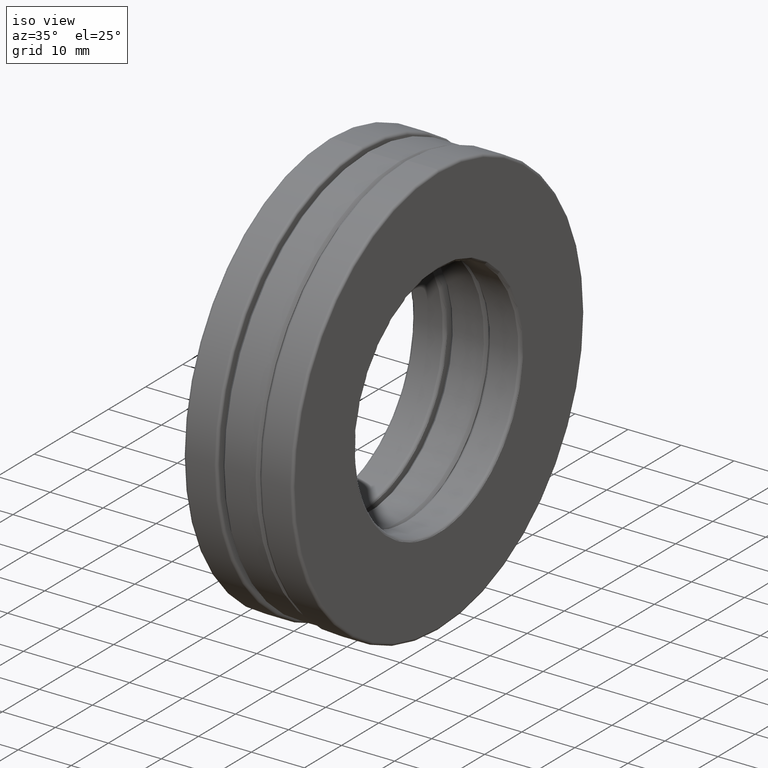
[diagram: clean part render]
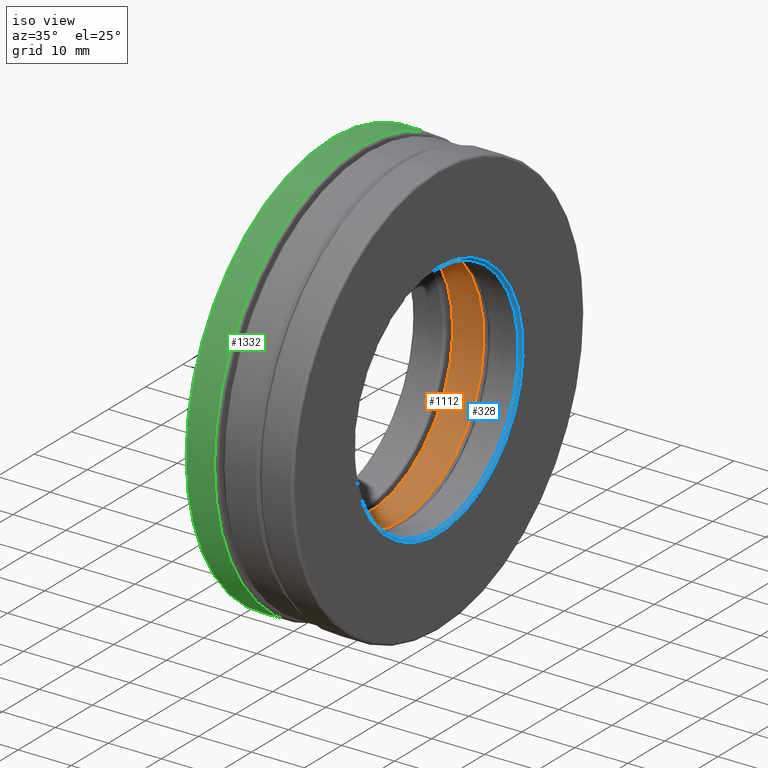
[diagram: same view with three faces highlighted in distinct colors, each labeled with its STEP entity id]
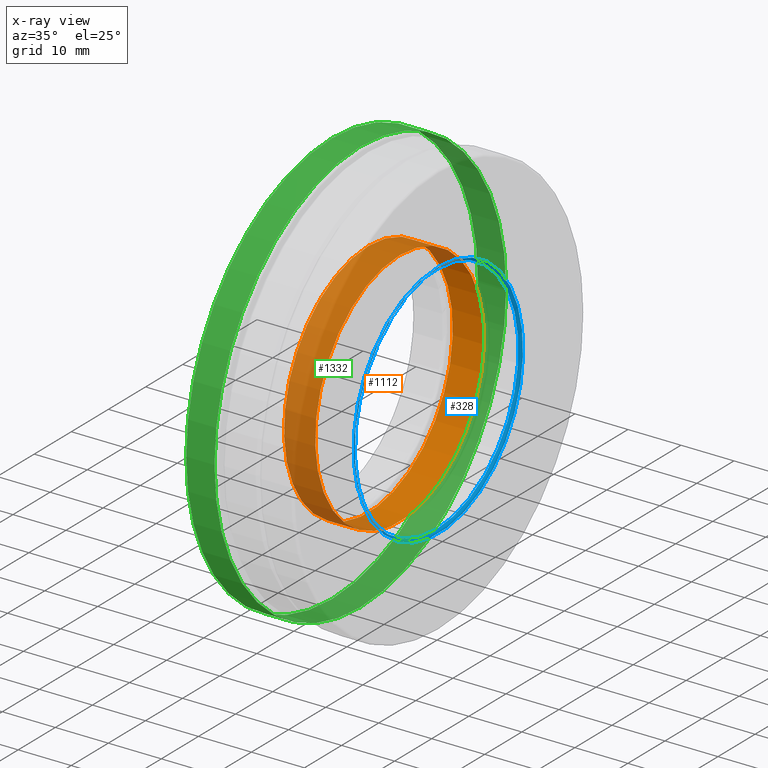
[diagram: x-ray of the same camera — body ghosted, the three highlighted faces saturated]
A machine part, iso view with three faces highlighted in distinct colors.
The next image is the same camera in x-ray (body ghosted, the three faces saturated) — at least one of them is partly hidden behind the body in this view.
Their STEP definitions:

[orange] entity #1112 — the highlighted cylindrical surface (bore or boss wall) has radius 22.733 mm, axis along (-1, -0, -0).
#30 = VERTEX_POINT ( 'NONE', #1015 ) ;
#166 = CARTESIAN_POINT ( 'NONE',  ( -0.1159999999999999400, 0.0000000000000000000, 0.0000000000000000000 ) ) ;
#167 = DIRECTION ( 'NONE',  ( -1.000000000000000000, -0.0000000000000000000, -0.0000000000000000000 ) ) ;
#168 = AXIS2_PLACEMENT_3D ( 'NONE', #759, #430, #1001 ) ;
#188 = AXIS2_PLACEMENT_3D ( 'NONE', #973, #167, #724 ) ;
#266 = EDGE_CURVE ( 'NONE', #30, #30, #827, .T. ) ;
#430 = DIRECTION ( 'NONE',  ( -1.000000000000000000, -0.0000000000000000000, -0.0000000000000000000 ) ) ;
#569 = FACE_OUTER_BOUND ( 'NONE', #765, .T. ) ;
#724 = DIRECTION ( 'NONE',  ( 0.0000000000000000000, 0.0000000000000000000, 1.000000000000000000 ) ) ;
#728 = FACE_OUTER_BOUND ( 'NONE', #1189, .T. ) ;
#759 = CARTESIAN_POINT ( 'NONE',  ( 0.1160000000000000800, 0.0000000000000000000, 0.0000000000000000000 ) ) ;
#765 = EDGE_LOOP ( 'NONE', ( #1459 ) ) ;
#782 = CARTESIAN_POINT ( 'NONE',  ( -0.1159999999999999400, 0.0000000000000000000, 0.8950000000000000200 ) ) ;
#827 = CIRCLE ( 'NONE', #168, 0.8950000000000000200 ) ;
#901 = AXIS2_PLACEMENT_3D ( 'NONE', #166, #1037, #1333 ) ;
#939 = VERTEX_POINT ( 'NONE', #782 ) ;
#973 = CARTESIAN_POINT ( 'NONE',  ( 0.0000000000000000000, 0.0000000000000000000, 0.0000000000000000000 ) ) ;
#999 = EDGE_CURVE ( 'NONE', #939, #939, #1052, .T. ) ;
#1001 = DIRECTION ( 'NONE',  ( 0.0000000000000000000, 0.0000000000000000000, 1.000000000000000000 ) ) ;
#1015 = CARTESIAN_POINT ( 'NONE',  ( 0.1160000000000000800, 0.0000000000000000000, 0.8950000000000000200 ) ) ;
#1037 = DIRECTION ( 'NONE',  ( -1.000000000000000000, -0.0000000000000000000, -0.0000000000000000000 ) ) ;
#1052 = CIRCLE ( 'NONE', #901, 0.8950000000000000200 ) ;
#1112 = ADVANCED_FACE ( 'NONE', ( #728, #569 ), #1162, .F. ) ;
#1162 = CYLINDRICAL_SURFACE ( 'NONE', #188, 0.8950000000000000200 ) ;
#1189 = EDGE_LOOP ( 'NONE', ( #1301 ) ) ;
#1301 = ORIENTED_EDGE ( 'NONE', *, *, #266, .F. ) ;
#1333 = DIRECTION ( 'NONE',  ( 0.0000000000000000000, 0.0000000000000000000, 1.000000000000000000 ) ) ;
#1459 = ORIENTED_EDGE ( 'NONE', *, *, #999, .T. ) ;

[blue] entity #328 — the highlighted toroidal blend (fillet) surface has major radius 22.733 mm and minor (blend) radius 0.508 mm.
#4 = EDGE_CURVE ( 'NONE', #1179, #1179, #353, .T. ) ;
#36 = CARTESIAN_POINT ( 'NONE',  ( 0.3860000000000000700, 0.0000000000000000000, 0.0000000000000000000 ) ) ;
#234 = CARTESIAN_POINT ( 'NONE',  ( 0.3860000000000000700, 0.0000000000000000000, 0.0000000000000000000 ) ) ;
#328 = ADVANCED_FACE ( 'NONE', ( #409, #1117 ), #775, .T. ) ;
#353 = CIRCLE ( 'NONE', #1059, 0.8950000000000000200 ) ;
#409 = FACE_OUTER_BOUND ( 'NONE', #1388, .T. ) ;
#452 = DIRECTION ( 'NONE',  ( -1.000000000000000000, -0.0000000000000000000, -0.0000000000000000000 ) ) ;
#495 = EDGE_LOOP ( 'NONE', ( #960 ) ) ;
#500 = DIRECTION ( 'NONE',  ( -1.000000000000000000, -0.0000000000000000000, -0.0000000000000000000 ) ) ;
#602 = DIRECTION ( 'NONE',  ( 0.0000000000000000000, 0.0000000000000000000, 1.000000000000000000 ) ) ;
#663 = CARTESIAN_POINT ( 'NONE',  ( 0.4060000000000001900, 0.0000000000000000000, 0.8950000000000000200 ) ) ;
#674 = DIRECTION ( 'NONE',  ( -1.000000000000000000, -0.0000000000000000000, -0.0000000000000000000 ) ) ;
#761 = EDGE_CURVE ( 'NONE', #1345, #1345, #1447, .T. ) ;
#775 = TOROIDAL_SURFACE ( 'NONE', #778, 0.8950000000000000200, 0.02000000000000009400 ) ;
#778 = AXIS2_PLACEMENT_3D ( 'NONE', #234, #452, #1252 ) ;
#795 = ORIENTED_EDGE ( 'NONE', *, *, #4, .F. ) ;
#960 = ORIENTED_EDGE ( 'NONE', *, *, #761, .T. ) ;
#1007 = CARTESIAN_POINT ( 'NONE',  ( 0.3860000000000000700, 0.0000000000000000000, 0.8750000000000000000 ) ) ;
#1059 = AXIS2_PLACEMENT_3D ( 'NONE', #1164, #500, #602 ) ;
#1117 = FACE_OUTER_BOUND ( 'NONE', #495, .T. ) ;
#1118 = DIRECTION ( 'NONE',  ( 0.0000000000000000000, 0.0000000000000000000, 1.000000000000000000 ) ) ;
#1134 = AXIS2_PLACEMENT_3D ( 'NONE', #36, #674, #1118 ) ;
#1164 = CARTESIAN_POINT ( 'NONE',  ( 0.4060000000000001900, 0.0000000000000000000, 0.0000000000000000000 ) ) ;
#1179 = VERTEX_POINT ( 'NONE', #663 ) ;
#1252 = DIRECTION ( 'NONE',  ( 0.0000000000000000000, 0.0000000000000000000, 1.000000000000000000 ) ) ;
#1345 = VERTEX_POINT ( 'NONE', #1007 ) ;
#1388 = EDGE_LOOP ( 'NONE', ( #795 ) ) ;
#1447 = CIRCLE ( 'NONE', #1134, 0.8750000000000000000 ) ;

[green] entity #1332 — the highlighted cylindrical surface (bore or boss wall) has radius 39.2906 mm, axis along (-1, -0, -0).
#49 = CYLINDRICAL_SURFACE ( 'NONE', #1095, 1.546875000000000200 ) ;
#118 = CARTESIAN_POINT ( 'NONE',  ( -0.3860000000000002900, 0.0000000000000000000, 0.0000000000000000000 ) ) ;
#210 = CARTESIAN_POINT ( 'NONE',  ( 0.0000000000000000000, 0.0000000000000000000, 0.0000000000000000000 ) ) ;
#249 = CARTESIAN_POINT ( 'NONE',  ( -0.1759999999999997100, 0.0000000000000000000, 0.0000000000000000000 ) ) ;
#347 = EDGE_CURVE ( 'NONE', #885, #885, #635, .T. ) ;
#357 = DIRECTION ( 'NONE',  ( 0.0000000000000000000, 0.0000000000000000000, 1.000000000000000000 ) ) ;
#366 = EDGE_LOOP ( 'NONE', ( #946 ) ) ;
#441 = AXIS2_PLACEMENT_3D ( 'NONE', #249, #585, #933 ) ;
#551 = EDGE_LOOP ( 'NONE', ( #559 ) ) ;
#559 = ORIENTED_EDGE ( 'NONE', *, *, #347, .F. ) ;
#585 = DIRECTION ( 'NONE',  ( -1.000000000000000000, -0.0000000000000000000, -0.0000000000000000000 ) ) ;
#635 = CIRCLE ( 'NONE', #984, 1.546875000000000200 ) ;
#649 = FACE_OUTER_BOUND ( 'NONE', #366, .T. ) ;
#768 = CARTESIAN_POINT ( 'NONE',  ( -0.1759999999999997100, 0.0000000000000000000, 1.546875000000000200 ) ) ;
#885 = VERTEX_POINT ( 'NONE', #1470 ) ;
#933 = DIRECTION ( 'NONE',  ( 0.0000000000000000000, 0.0000000000000000000, 1.000000000000000000 ) ) ;
#946 = ORIENTED_EDGE ( 'NONE', *, *, #1396, .T. ) ;
#984 = AXIS2_PLACEMENT_3D ( 'NONE', #118, #1027, #357 ) ;
#1000 = DIRECTION ( 'NONE',  ( 0.0000000000000000000, 0.0000000000000000000, 1.000000000000000000 ) ) ;
#1027 = DIRECTION ( 'NONE',  ( -1.000000000000000000, -0.0000000000000000000, -0.0000000000000000000 ) ) ;
#1054 = VERTEX_POINT ( 'NONE', #768 ) ;
#1095 = AXIS2_PLACEMENT_3D ( 'NONE', #210, #1103, #1000 ) ;
#1103 = DIRECTION ( 'NONE',  ( -1.000000000000000000, -0.0000000000000000000, -0.0000000000000000000 ) ) ;
#1261 = FACE_OUTER_BOUND ( 'NONE', #551, .T. ) ;
#1320 = CIRCLE ( 'NONE', #441, 1.546875000000000200 ) ;
#1332 = ADVANCED_FACE ( 'NONE', ( #1261, #649 ), #49, .T. ) ;
#1396 = EDGE_CURVE ( 'NONE', #1054, #1054, #1320, .T. ) ;
#1470 = CARTESIAN_POINT ( 'NONE',  ( -0.3860000000000002900, 0.0000000000000000000, 1.546875000000000200 ) ) ;